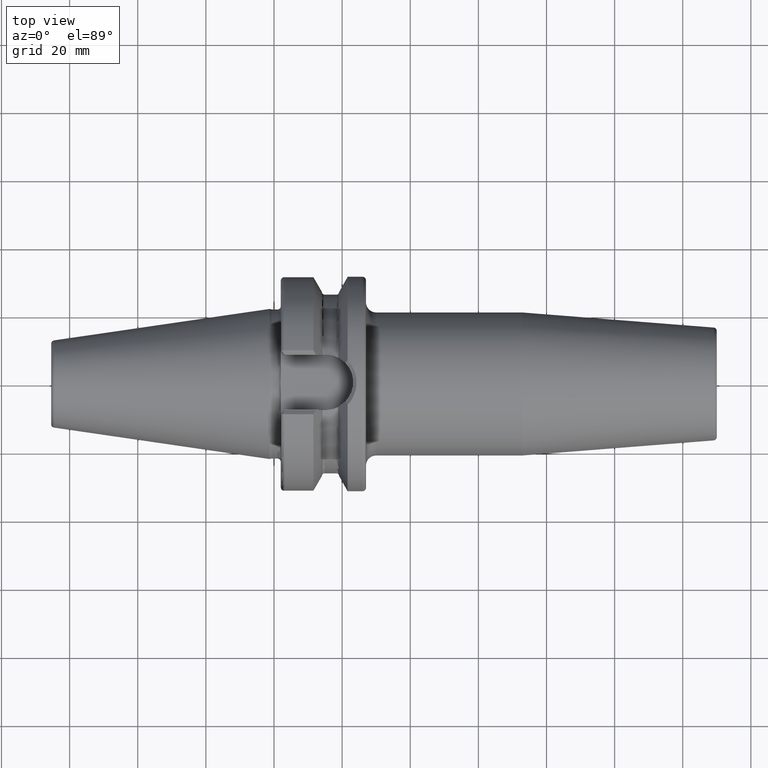
[diagram: clean part render]
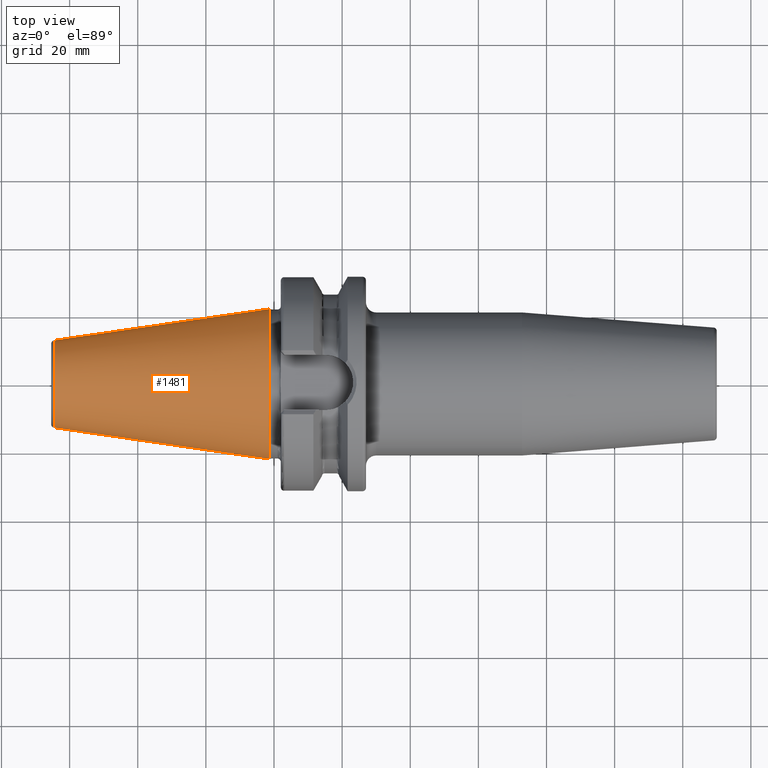
[diagram: same view with one face highlighted and labeled with its STEP entity id]
A machine part, top view. The second image highlights one B-rep face of the part: STEP entity #1481.
In plain terms, the highlighted conical surface has half-angle 8.298 deg.
Its self-contained STEP definition (entity closure, byte-faithful):
#37=CARTESIAN_POINT('',(-6.454431866917E1,0.E0,0.E0));
#38=DIRECTION('',(1.E0,0.E0,0.E0));
#39=DIRECTION('',(0.E0,1.E0,0.E0));
#40=AXIS2_PLACEMENT_3D('',#37,#38,#39);
#42=CARTESIAN_POINT('',(-1.266732031557E0,0.E0,0.E0));
#43=DIRECTION('',(1.E0,0.E0,0.E0));
#44=DIRECTION('',(0.E0,1.E0,0.E0));
#45=AXIS2_PLACEMENT_3D('',#42,#43,#44);
#47=DIRECTION('',(-9.895312636440E-1,-1.443186691705E-1,0.E0));
#48=VECTOR('',#47,6.394703124850E1);
#49=CARTESIAN_POINT('',(-1.266732031557E0,2.204025284980E1,0.E0));
#50=LINE('',#49,#48);
#51=DIRECTION('',(-9.895312636440E-1,1.443186691705E-1,0.E0));
#52=VECTOR('',#51,6.394703124850E1);
#53=CARTESIAN_POINT('',(-1.266732031557E0,-2.204025284980E1,0.E0));
#54=LINE('',#53,#52);
#1170=CARTESIAN_POINT('',(-6.454431866917E1,1.281150240261E1,0.E0));
#1172=VERTEX_POINT('',#1170);
#1174=CARTESIAN_POINT('',(-6.454431866917E1,-1.281150240261E1,0.E0));
#1176=VERTEX_POINT('',#1174);
#1389=CARTESIAN_POINT('',(-1.266732031557E0,2.204025284980E1,0.E0));
#1390=VERTEX_POINT('',#1389);
#1391=CARTESIAN_POINT('',(-1.266732031557E0,-2.204025284980E1,0.E0));
#1392=VERTEX_POINT('',#1391);
#1467=CARTESIAN_POINT('',(-3.290552535036E1,0.E0,0.E0));
#1468=DIRECTION('',(1.E0,0.E0,0.E0));
#1469=DIRECTION('',(0.E0,-1.E0,0.E0));
#1470=AXIS2_PLACEMENT_3D('',#1467,#1468,#1469);
#1471=CONICAL_SURFACE('',#1470,1.742587762621E1,8.297826828206E0);
#1473=ORIENTED_EDGE('',*,*,#1472,.F.);
#1475=ORIENTED_EDGE('',*,*,#1474,.T.);
#1477=ORIENTED_EDGE('',*,*,#1476,.T.);
#1478=ORIENTED_EDGE('',*,*,#1460,.F.);
#1479=EDGE_LOOP('',(#1473,#1475,#1477,#1478));
#1480=FACE_OUTER_BOUND('',#1479,.F.);
#1481=ADVANCED_FACE('',(#1480),#1471,.T.);
#41=CIRCLE('',#40,1.281150240261E1);
#46=CIRCLE('',#45,2.204025284980E1);
#1460=EDGE_CURVE('',#1172,#1176,#41,.T.);
#1472=EDGE_CURVE('',#1390,#1172,#50,.T.);
#1474=EDGE_CURVE('',#1390,#1392,#46,.T.);
#1476=EDGE_CURVE('',#1392,#1176,#54,.T.);